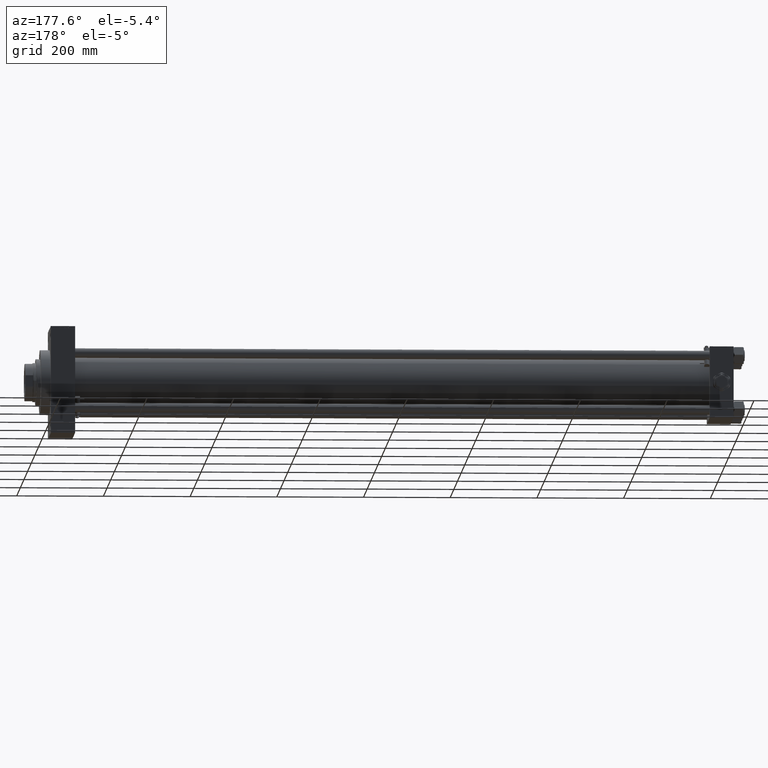
[diagram: clean part render]
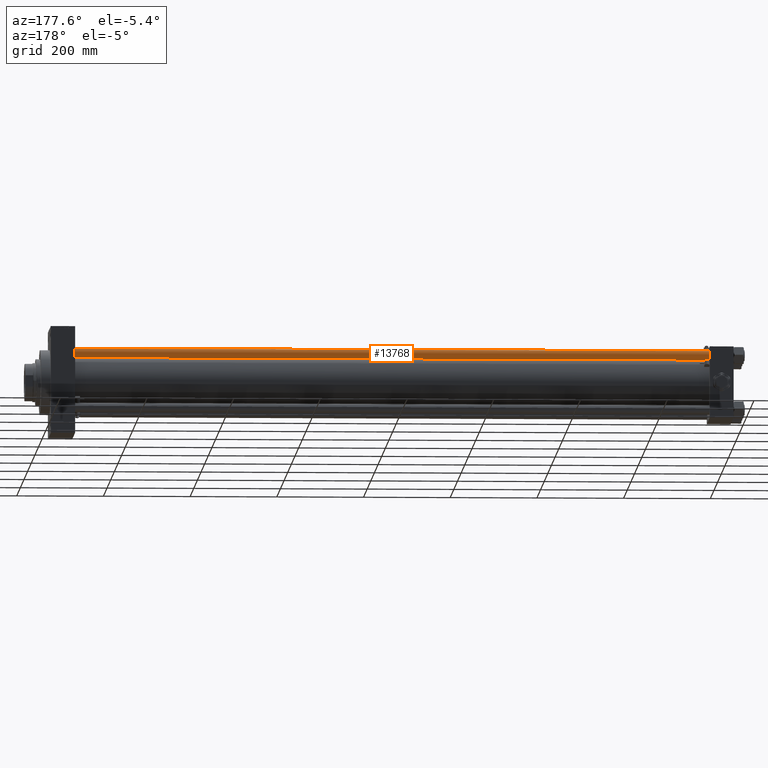
[diagram: same view with one face highlighted and labeled with its STEP entity id]
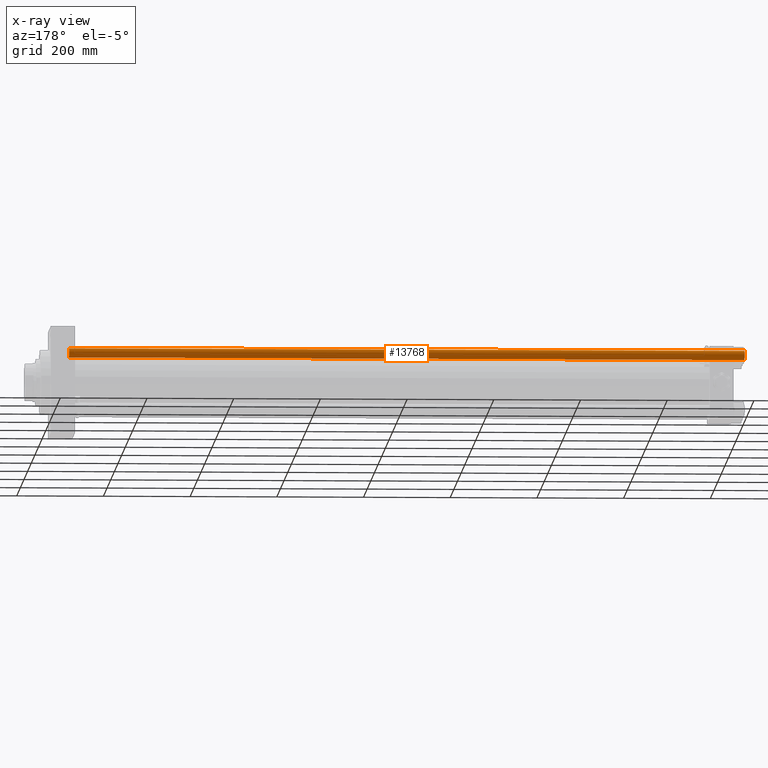
[diagram: x-ray of the same camera — body ghosted, the highlighted face saturated]
A machine part, auxiliary view. The second image highlights one B-rep face of the part: STEP entity #13768.
The next image is the same camera in x-ray: the body ghosted, the highlighted face saturated — about 0% of this face is hidden behind the body in this view.
In plain terms, the highlighted cylindrical surface (edge-blend (fillet) strip) has radius 11 mm, axis along (-1, -0, 0).
Its self-contained STEP definition (entity closure, byte-faithful):
#2675 = VERTEX_POINT ( 'NONE', #30887 ) ;
#3835 = CARTESIAN_POINT ( 'NONE',  ( 0.000000000000000000, 0.000000000000000000, 0.4999999999997228883 ) ) ;
#5806 = EDGE_LOOP ( 'NONE', ( #9302, #8597, #45883, #15716 ) ) ;
#6291 = CARTESIAN_POINT ( 'NONE',  ( 0.000000000000000000, 0.000000000000000000, 1559.000000000000000 ) ) ;
#8597 = ORIENTED_EDGE ( 'NONE', *, *, #33417, .T. ) ;
#9302 = ORIENTED_EDGE ( 'NONE', *, *, #29524, .T. ) ;
#11237 = CARTESIAN_POINT ( 'NONE',  ( 11.00000000000000000, 1.347111479062088405E-15, 1559.000000000000000 ) ) ;
#13768 = ADVANCED_FACE ( 'NONE', ( #25864 ), #40522, .T. ) ;
#15122 = DIRECTION ( 'NONE',  ( -0.000000000000000000, -0.000000000000000000, -1.000000000000000000 ) ) ;
#15716 = ORIENTED_EDGE ( 'NONE', *, *, #40470, .F. ) ;
#16879 = DIRECTION ( 'NONE',  ( -0.000000000000000000, -0.000000000000000000, -1.000000000000000000 ) ) ;
#19559 = DIRECTION ( 'NONE',  ( -0.000000000000000000, -0.000000000000000000, 1.000000000000000000 ) ) ;
#19951 = VECTOR ( 'NONE', #15122, 1000.000000000000000 ) ;
#20284 = CIRCLE ( 'NONE', #49033, 11.00000000000000000 ) ;
#21362 = CARTESIAN_POINT ( 'NONE',  ( -11.00000000000000000, 0.000000000000000000, 1558.500000000000000 ) ) ;
#21606 = CIRCLE ( 'NONE', #35560, 11.00000000000000000 ) ;
#24063 = CARTESIAN_POINT ( 'NONE',  ( 11.00000000000000000, 1.347111479062088405E-15, 0.4999999999997228883 ) ) ;
#25416 = DIRECTION ( 'NONE',  ( 0.000000000000000000, 0.000000000000000000, -1.000000000000000000 ) ) ;
#25864 = FACE_OUTER_BOUND ( 'NONE', #5806, .T. ) ;
#26881 = DIRECTION ( 'NONE',  ( -1.000000000000000000, 0.000000000000000000, 0.000000000000000000 ) ) ;
#26966 = DIRECTION ( 'NONE',  ( -0.000000000000000000, -0.000000000000000000, -1.000000000000000000 ) ) ;
#29484 = VERTEX_POINT ( 'NONE', #31348 ) ;
#29524 = EDGE_CURVE ( 'NONE', #45247, #2675, #20284, .T. ) ;
#30887 = CARTESIAN_POINT ( 'NONE',  ( 11.00000000000000000, 1.347111479062088405E-15, 1558.500000000000000 ) ) ;
#31348 = CARTESIAN_POINT ( 'NONE',  ( -11.00000000000000000, 0.000000000000000000, 0.4999999999997228883 ) ) ;
#33417 = EDGE_CURVE ( 'NONE', #2675, #42283, #46499, .T. ) ;
#33935 = LINE ( 'NONE', #39457, #19951 ) ;
#35254 = DIRECTION ( 'NONE',  ( 1.000000000000000000, 0.000000000000000000, 0.000000000000000000 ) ) ;
#35560 = AXIS2_PLACEMENT_3D ( 'NONE', #3835, #19559, #35254 ) ;
#36037 = VECTOR ( 'NONE', #26966, 1000.000000000000000 ) ;
#39457 = CARTESIAN_POINT ( 'NONE',  ( -11.00000000000000000, 0.000000000000000000, 1559.000000000000000 ) ) ;
#40278 = EDGE_CURVE ( 'NONE', #42283, #29484, #21606, .T. ) ;
#40470 = EDGE_CURVE ( 'NONE', #45247, #29484, #33935, .T. ) ;
#40522 = CYLINDRICAL_SURFACE ( 'NONE', #47816, 11.00000000000000000 ) ;
#41353 = DIRECTION ( 'NONE',  ( 1.000000000000000000, 0.000000000000000000, 0.000000000000000000 ) ) ;
#42283 = VERTEX_POINT ( 'NONE', #24063 ) ;
#44696 = CARTESIAN_POINT ( 'NONE',  ( 0.000000000000000000, 0.000000000000000000, 1558.500000000000000 ) ) ;
#45247 = VERTEX_POINT ( 'NONE', #21362 ) ;
#45883 = ORIENTED_EDGE ( 'NONE', *, *, #40278, .T. ) ;
#46499 = LINE ( 'NONE', #11237, #36037 ) ;
#47816 = AXIS2_PLACEMENT_3D ( 'NONE', #6291, #16879, #26881 ) ;
#49033 = AXIS2_PLACEMENT_3D ( 'NONE', #44696, #25416, #41353 ) ;